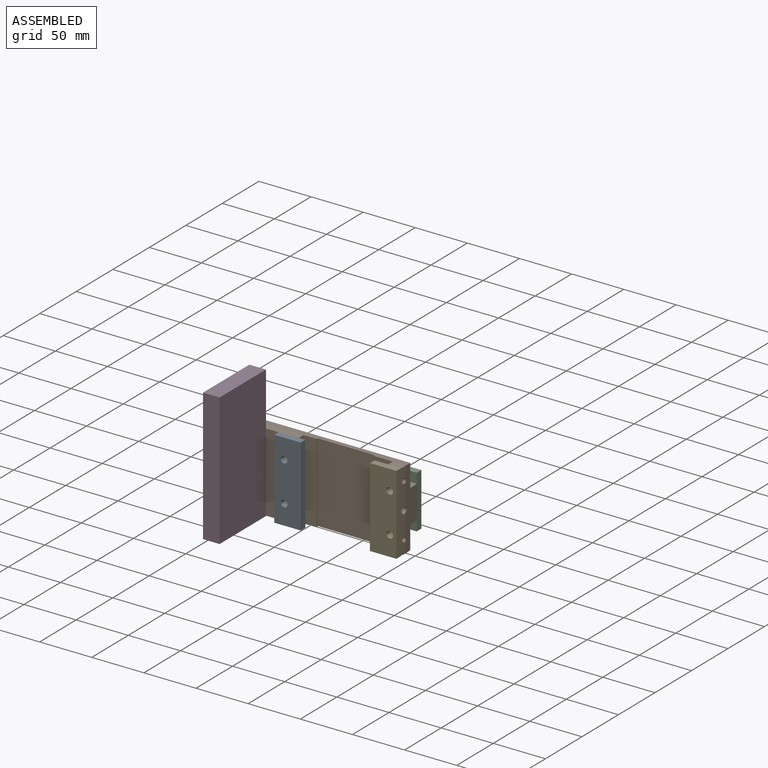
[diagram: assembled view]
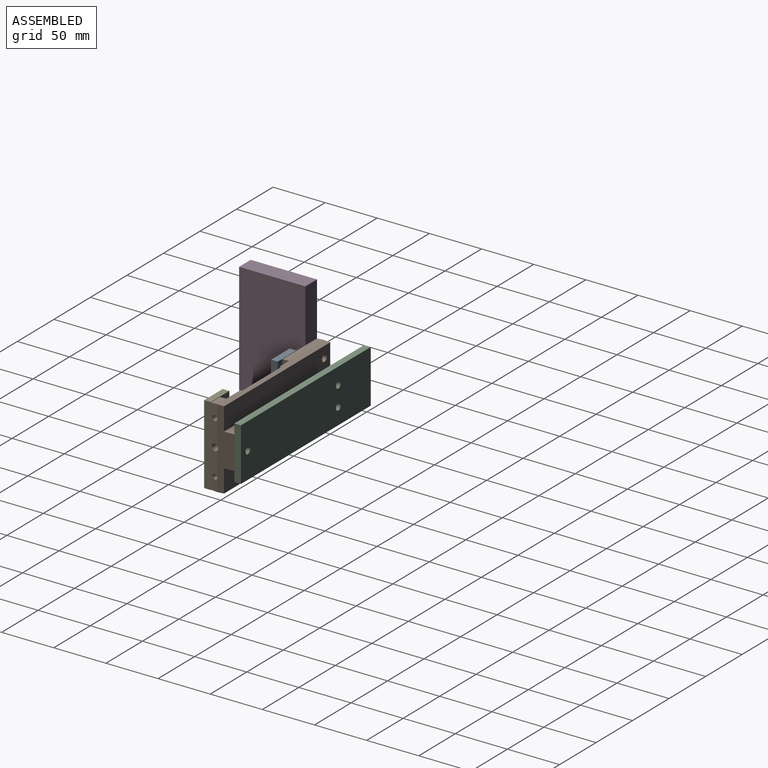
[diagram: assembled view, second angle]
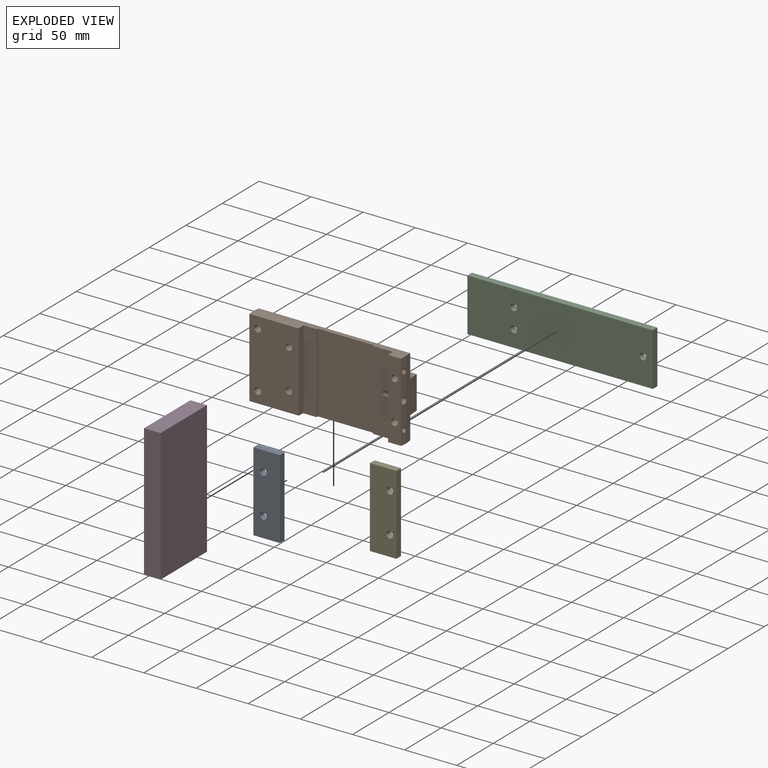
[diagram: exploded view]
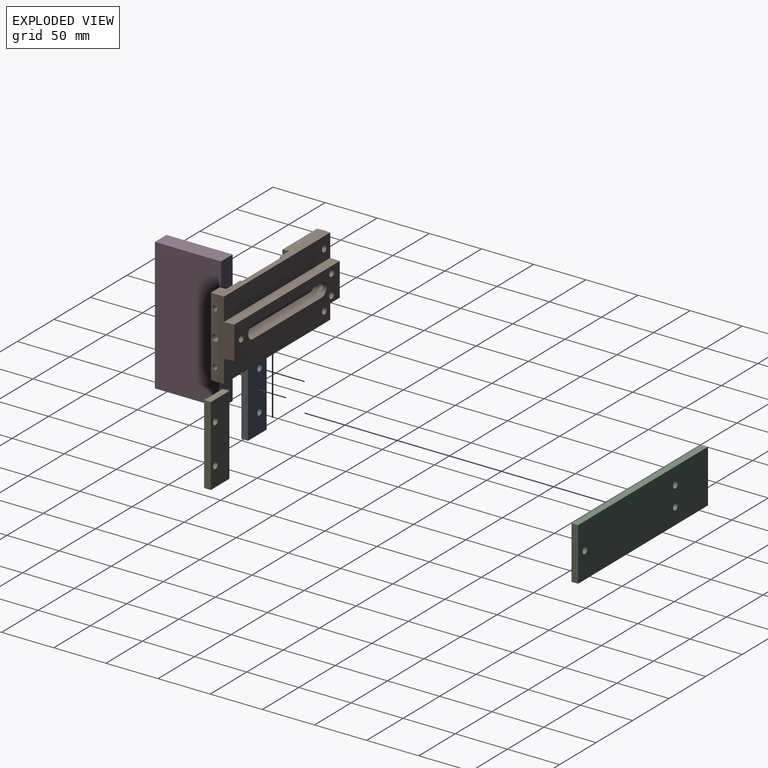
[diagram: exploded view, second angle]
ASSEMBLY  parts=5 mates=4
PART A: 8 faces, bbox 76.2x6.4x25.4 mm
  f0: plane 25.4x6.35mm, normal (-1,0,0), area 161.3mm2, adj f1,f4,f6,f7
  f1: plane 76.2x6.35mm, normal (0,0,-1), area 483.9mm2, adj f0,f2,f6,f7
  f2: plane 25.4x6.35mm, normal (1,0,0), area 161.3mm2, adj f1,f4,f6,f7
  f3: cylinder r=3.17mm len=6.35mm, axis (0,1,0), area 126.7mm2, adj f6,f7
  f4: plane 76.2x6.35mm, normal (0,0,1), area 483.9mm2, adj f0,f2,f6,f7
  f5: cylinder r=3.17mm len=6.35mm, axis (0,1,0), area 126.7mm2, adj f6,f7
  f6: plane 76.2x25.4mm, normal (0,-1,0), area 1872.1mm2, adj f0,f1,f2,f3,f4,f5
  f7: plane 76.2x25.4mm, normal (0,1,0), area 1872.1mm2, adj f0,f1,f2,f3,f4,f5
PART B: 52 faces, bbox 76.7x22.7x146.5 mm
  f0: cone r=6.35mm half-angle=8deg, axis (0,-1,0), area 162.8mm2, adj f1,f25,f26,f28,f49
  f1: plane 144.39x31.75mm, normal (0,-1,0), area 3163.5mm2, adj f0,f9,f10,f15,f16,f25,f26,f27
  f2: plane 75.53x47.29mm, normal (0,1,0), area 3445.5mm2, adj f5,f7,f13,f22,f39,f41,f50,f51
  f3: plane 146.05x6.35mm, normal (-1,-0.05,0), area 840.9mm2, adj f7,f8,f9,f10,f17,f18,f19,f20
  f4: plane 146.05x6.35mm, normal (1,-0.05,0), area 840.9mm2, adj f5,f6,f9,f10,f14,f18,f19,f20
  f5: plane 47.63x6.35mm, normal (1,0.05,0), area 301.8mm2, adj f2,f4,f13,f22
  f6: plane 12.7x6.35mm, normal (1,0.05,0), area 79.7mm2, adj f4,f11,f12,f23
  f7: plane 47.63x6.35mm, normal (-1,0.05,0), area 301.8mm2, adj f2,f3,f13,f22
  f8: plane 12.7x6.35mm, normal (-1,0.05,0), area 79.7mm2, adj f3,f11,f12,f23
  f9: plane 76.44x16.11mm, normal (0,-0.05,-1), area 753.5mm2, adj f1,f3,f4,f13,f14,f15,f16,f17
  f10: plane 76.28x15.96mm, normal (0,-0.05,1), area 782.3mm2, adj f1,f3,f4,f12,f14,f15,f16,f17
  f11: plane 75.53x12.37mm, normal (0,1,0), area 870.8mm2, adj f6,f8,f12,f23,f35,f37
  f12: plane 76.69x6.84mm, normal (0,0.05,1), area 417mm2, adj f6,f8,f10,f11,f43,f45,f47
  f13: plane 76.2x6.35mm, normal (0,0.05,-1), area 482.4mm2, adj f2,f5,f7,f9
  f14: plane 145.38x21.89mm, normal (0,-1,0), area 3151.1mm2, adj f4,f9,f10,f15,f50
  f15: plane 145.38x9.53mm, normal (1,0,0), area 1380mm2, adj f1,f9,f10,f14
  f16: plane 145.38x9.53mm, normal (-1,0,0), area 1380mm2, adj f1,f9,f10,f17
  f17: plane 145.38x21.89mm, normal (0,-1,0), area 3151.1mm2, adj f3,f9,f10,f16,f51
  f18: plane 76.2x1.59mm, normal (0,0.05,-1), area 121mm2, adj f3,f4,f19,f24
  f19: plane 76.03x53.81mm, normal (0,1,0), area 4091.3mm2, adj f3,f4,f18,f20
  f20: plane 76.2x1.59mm, normal (0,0.05,1), area 121mm2, adj f3,f4,f19,f21
  f21: plane 76.2x12.7mm, normal (0,1,0), area 967.7mm2, adj f3,f4,f20,f22
  f22: plane 76.2x6.35mm, normal (0,0,1), area 481.8mm2, adj f2,f5,f7,f21
  f23: plane 76.2x6.35mm, normal (0,0,-1), area 416.5mm2, adj f6,f8,f11,f24,f43,f45,f47
  f24: plane 76.2x19.05mm, normal (0,1,0), area 1380.2mm2, adj f3,f4,f18,f23,f43,f44,f45,f46
  f25: plane 94.42x11.11mm, normal (0.99,-0.14,0), area 1059.5mm2, adj f0,f1,f27,f28
  f26: plane 94.42x11.11mm, normal (-0.99,-0.14,0), area 1059.5mm2, adj f0,f1,f27,f28
  f27: cone r=6.35mm half-angle=8deg, axis (0,-1,0), area 196.3mm2, adj f1,f25,f26,f28
  f28: plane 103.99x9.58mm, normal (0,-1,0), area 976.2mm2, adj f0,f25,f26,f27
  f29: cylinder r=3.17mm len=9.53mm, axis (0,-1,0), area 190mm2, adj f1,f30
  f30: plane 6.35x6.35mm, normal (0,-1,0), area 31.7mm2, adj f29
  f31: cylinder r=3.17mm len=9.53mm, axis (0,-1,0), area 190mm2, adj f1,f32
  f32: plane 6.35x6.35mm, normal (0,-1,0), area 31.7mm2, adj f31
  f33: cylinder r=3.17mm len=9.53mm, axis (0,-1,0), area 190mm2, adj f1,f34
  f34: plane 6.35x6.35mm, normal (0,-1,0), area 31.7mm2, adj f33
  f35: cylinder r=3.17mm len=9.53mm, axis (0,1,0), area 190mm2, adj f11,f36
  f36: plane 6.35x6.35mm, normal (0,1,0), area 31.7mm2, adj f35
  f37: cylinder r=3.17mm len=9.53mm, axis (0,1,0), area 190mm2, adj f11,f38
  f38: plane 6.35x6.35mm, normal (0,1,0), area 31.7mm2, adj f37
  f39: cylinder r=3.17mm len=9.53mm, axis (0,1,0), area 190mm2, adj f2,f40
  f40: plane 6.35x6.35mm, normal (0,1,0), area 31.7mm2, adj f39
  f41: cylinder r=3.17mm len=9.53mm, axis (0,1,0), area 190mm2, adj f2,f42
  f42: plane 6.35x6.35mm, normal (0,1,0), area 31.7mm2, adj f41
  f43: cylinder r=3.17mm len=22.23mm, axis (0,0,1), area 297.2mm2, adj f10,f12,f23,f24,f44
  f44: plane 4.41x0.89mm, normal (0,0,1), area 2.7mm2, adj f24,f43
  f45: cylinder r=2.41mm len=22.23mm, axis (0,0,1), area 207.5mm2, adj f10,f12,f23,f24,f46
  f46: plane 1.55x0.13mm, normal (0,0,1), area 0.1mm2, adj f24,f45
  f47: cylinder r=2.41mm len=22.23mm, axis (0,0,1), area 207.5mm2, adj f10,f12,f23,f24,f48
  f48: plane 1.55x0.13mm, normal (0,0,1), area 0.1mm2, adj f24,f47
  f49: cylinder r=3.17mm len=19.71mm, axis (0,0,-1), area 390.4mm2, adj f0,f9
  f50: cylinder r=3.17mm len=12.7mm, axis (0,-1,0), area 253.4mm2, adj f2,f14
  f51: cylinder r=3.17mm len=12.7mm, axis (0,-1,0), area 253.4mm2, adj f2,f17
PART C: 9 faces, bbox 50.8x6.4x177.8 mm
  f0: plane 50.8x6.35mm, normal (0,0,1), area 322.6mm2, adj f1,f3,f7,f8
  f1: plane 177.8x6.35mm, normal (-1,0,0), area 1129mm2, adj f0,f2,f7,f8
  f2: plane 50.8x6.35mm, normal (0,0,-1), area 322.6mm2, adj f1,f3,f7,f8
  f3: plane 177.8x6.35mm, normal (1,0,0), area 1129mm2, adj f0,f2,f7,f8
  f4: cylinder r=3.17mm len=6.35mm, axis (0,1,0), area 126.7mm2, adj f7,f8
  f5: cylinder r=3.17mm len=6.35mm, axis (0,1,0), area 126.7mm2, adj f7,f8
  f6: cylinder r=3.17mm len=6.35mm, axis (0,1,0), area 126.7mm2, adj f7,f8
  f7: plane 177.8x50.8mm, normal (0,-1,0), area 8937.2mm2, adj f0,f1,f2,f3,f4,f5,f6
  f8: plane 177.8x50.8mm, normal (0,1,0), area 8937.2mm2, adj f0,f1,f2,f3,f4,f5,f6
PART D: 10 faces, bbox 127x15.9x63.5 mm
  f0: plane 63.5x15.88mm, normal (-1,0,0), area 1008.1mm2, adj f1,f3,f4,f5
  f1: plane 127x15.88mm, normal (0,0,-1), area 2016.1mm2, adj f0,f2,f4,f5
  f2: plane 63.5x15.88mm, normal (1,0,0), area 1008.1mm2, adj f1,f3,f4,f5
  f3: plane 127x15.88mm, normal (0,0,1), area 1952.8mm2, adj f0,f2,f4,f5,f6,f8
  f4: plane 127x63.5mm, normal (0,-1,0), area 8064.5mm2, adj f0,f1,f2,f3
  f5: plane 127x63.5mm, normal (0,1,0), area 8064.5mm2, adj f0,f1,f2,f3
  f6: cylinder r=3.17mm len=9.53mm, axis (0,0,1), area 190mm2, adj f3,f7
  f7: plane 6.35x6.35mm, normal (0,0,1), area 31.7mm2, adj f6
  f8: cylinder r=3.17mm len=9.53mm, axis (0,0,1), area 190mm2, adj f3,f9
  f9: plane 6.35x6.35mm, normal (0,0,1), area 31.7mm2, adj f8
PART E: 8 faces, bbox 76.2x6.4x25.4 mm
  f0: plane 25.4x6.35mm, normal (-1,0,0), area 161.3mm2, adj f1,f4,f6,f7
  f1: plane 76.2x6.35mm, normal (0,0,-1), area 483.9mm2, adj f0,f2,f6,f7
  f2: plane 25.4x6.35mm, normal (1,0,0), area 161.3mm2, adj f1,f4,f6,f7
  f3: cylinder r=3.17mm len=6.35mm, axis (0,1,0), area 126.7mm2, adj f6,f7
  f4: plane 76.2x6.35mm, normal (0,0,1), area 483.9mm2, adj f0,f2,f6,f7
  f5: cylinder r=3.17mm len=6.35mm, axis (0,1,0), area 126.7mm2, adj f6,f7
  f6: plane 76.2x25.4mm, normal (0,-1,0), area 1872.1mm2, adj f0,f1,f2,f3,f4,f5
  f7: plane 76.2x25.4mm, normal (0,1,0), area 1872.1mm2, adj f0,f1,f2,f3,f4,f5
PLACE A rot(axis=(0.71,0,0.71),180deg) t=(28.24,-19.05,-75.87)mm
PLACE B rot(axis=(0.71,0,0.71),180deg) t=(-0.33,-6.35,-75.87)mm
PLACE C rot(axis=(0.71,0,0.71),180deg) t=(-32.91,9.53,-63.17)mm
PLACE D rot(axis=(-0.58,-0.58,-0.58),120deg) t=(15.88,-76.2,-75.87)mm
PLACE E rot(axis=(0,-1,0),90deg) t=(145.38,-12.7,-75.87)mm
MATE fastened D.f8 <-> B.f51  axis (0,1,0) through (7.94,-12.7,-64.75)mm
MATE fastened C.f4 <-> B.f29  axis (0,-1,0) through (135.36,9.53,-37.77)mm
MATE fastened A.f5 <-> B.f41  axis (0,-1,0) through (37.77,-12.7,-18.72)mm
MATE fastened B.f35 <-> E.f5  axis (0,-1,0) through (139.03,-12.7,-18.72)mm
